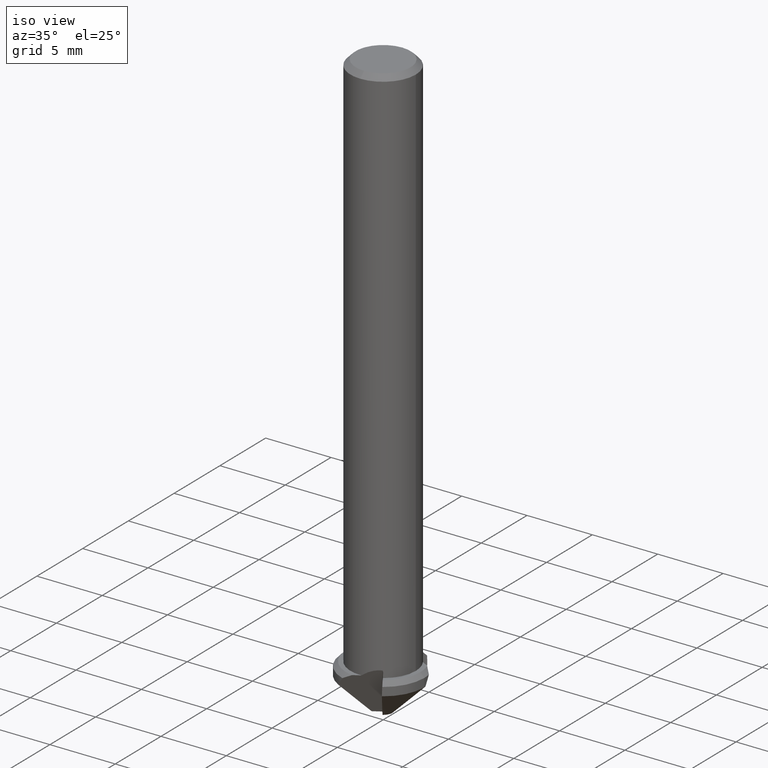
[diagram: clean part render]
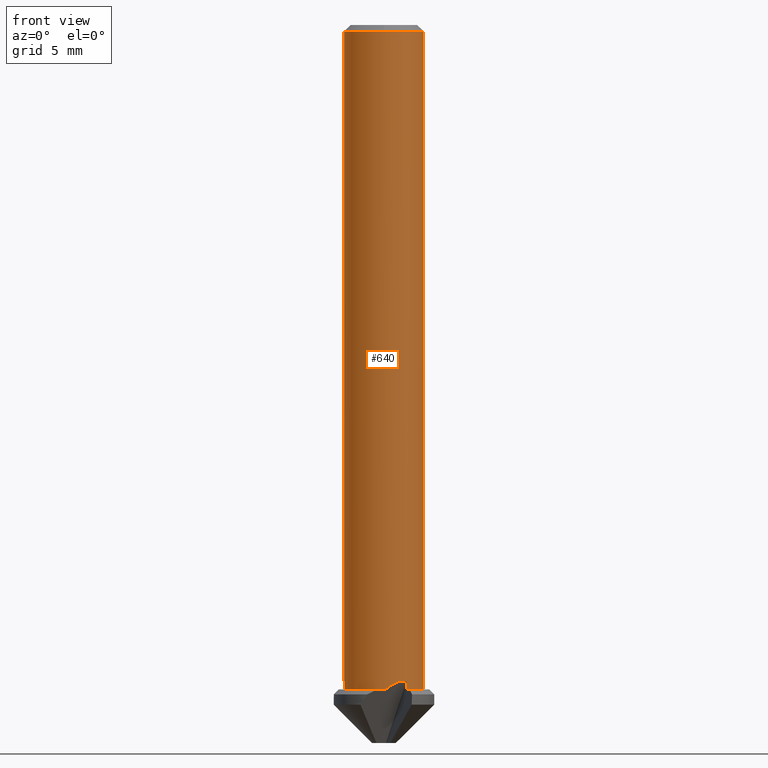
[diagram: tour spotlight — one face highlighted and labeled with its STEP entity id]
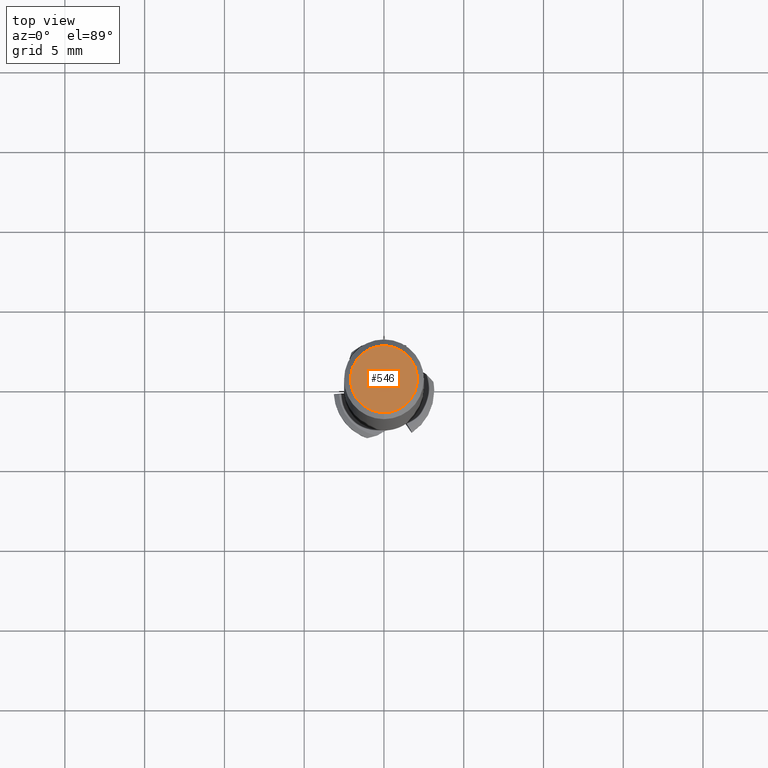
[diagram: tour spotlight — one face highlighted and labeled with its STEP entity id]
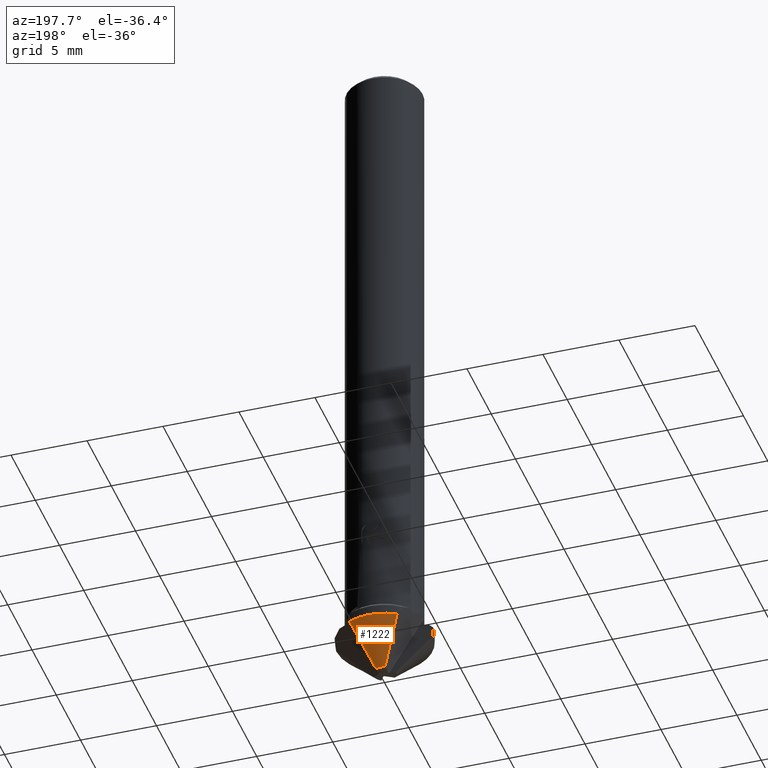
[diagram: tour spotlight — one face highlighted and labeled with its STEP entity id]
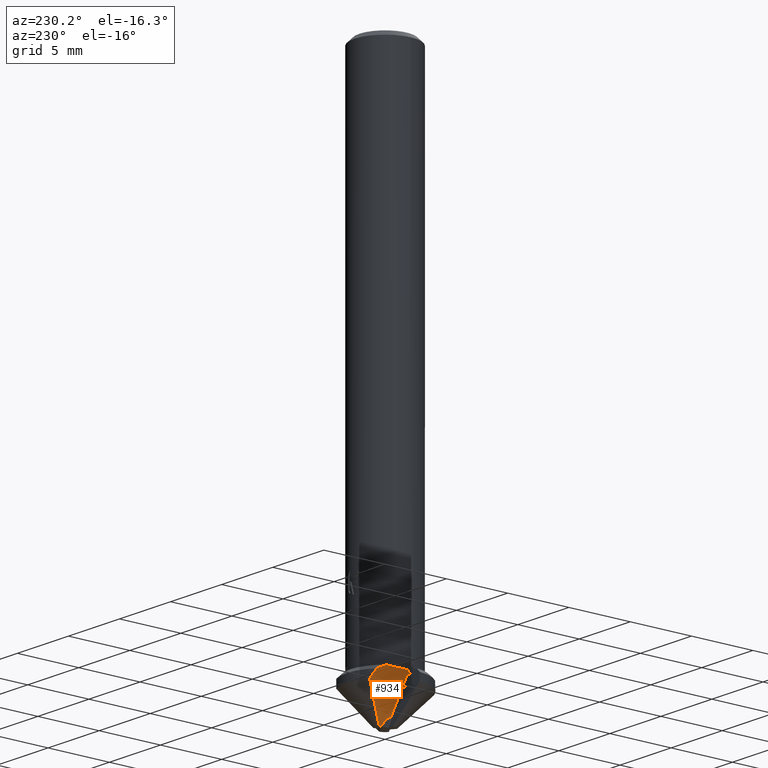
[diagram: tour spotlight — one face highlighted and labeled with its STEP entity id]
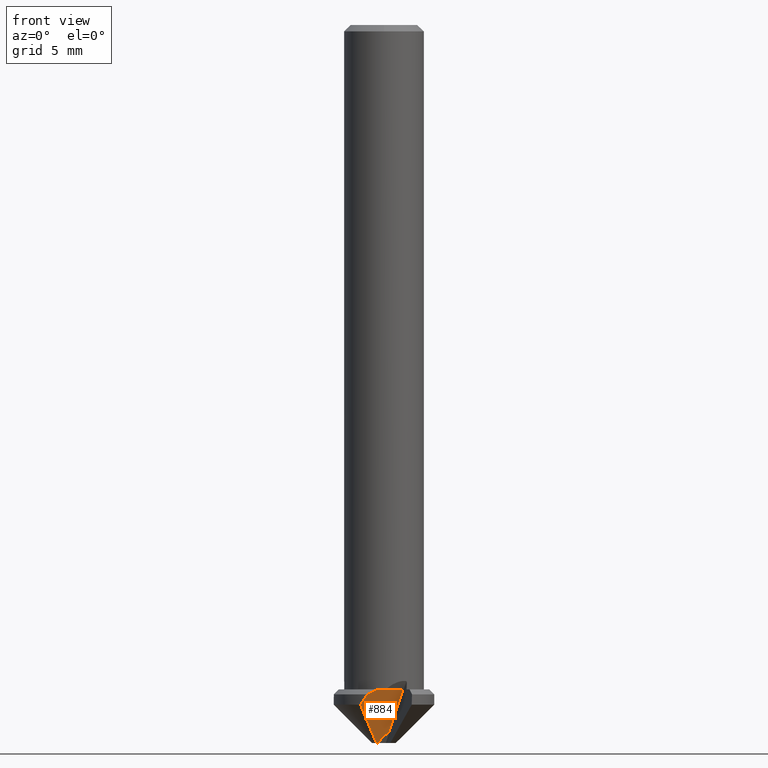
[diagram: tour spotlight — one face highlighted and labeled with its STEP entity id]
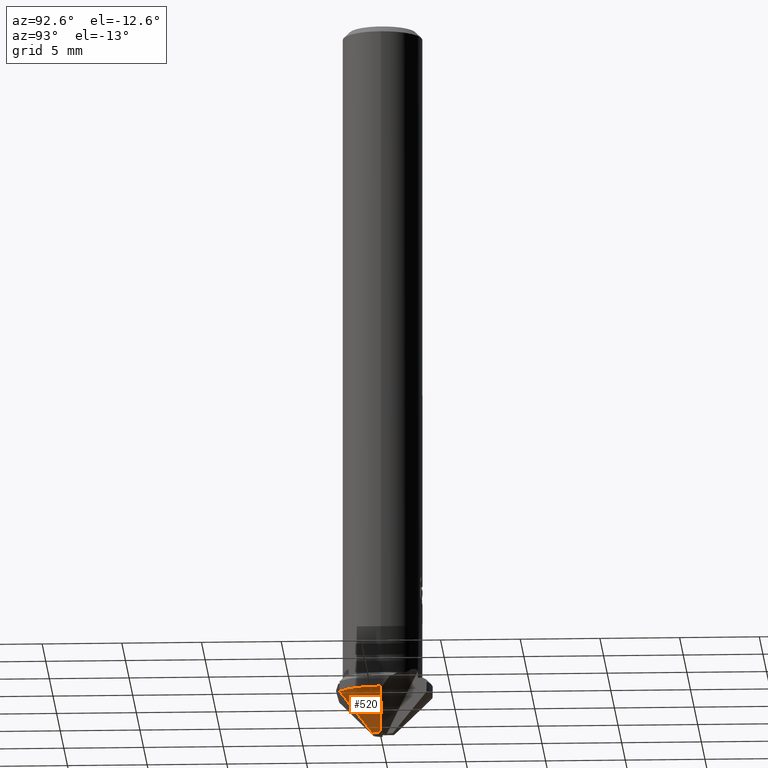
[diagram: tour spotlight — one face highlighted and labeled with its STEP entity id]
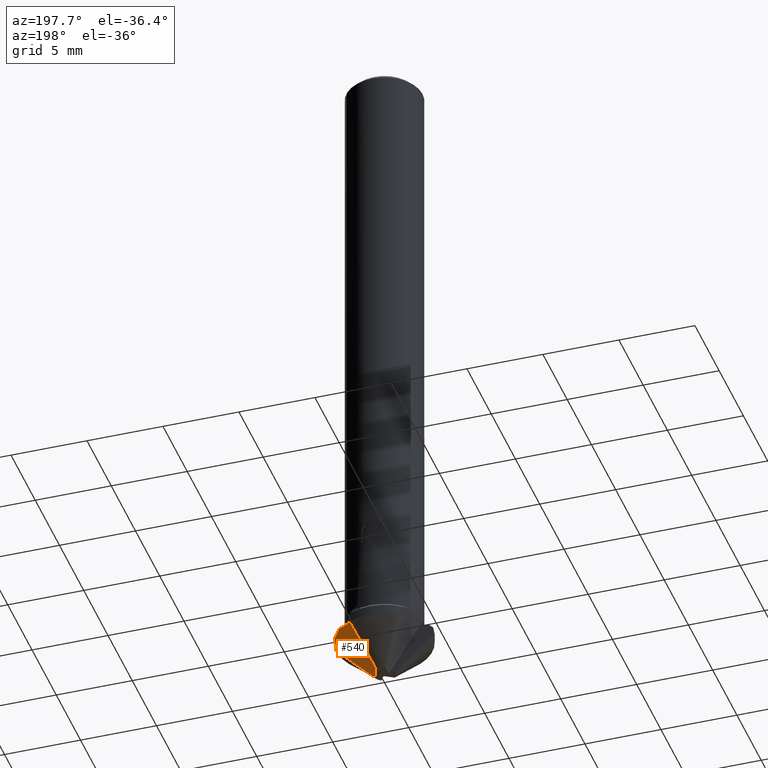
[diagram: tour spotlight — one face highlighted and labeled with its STEP entity id]
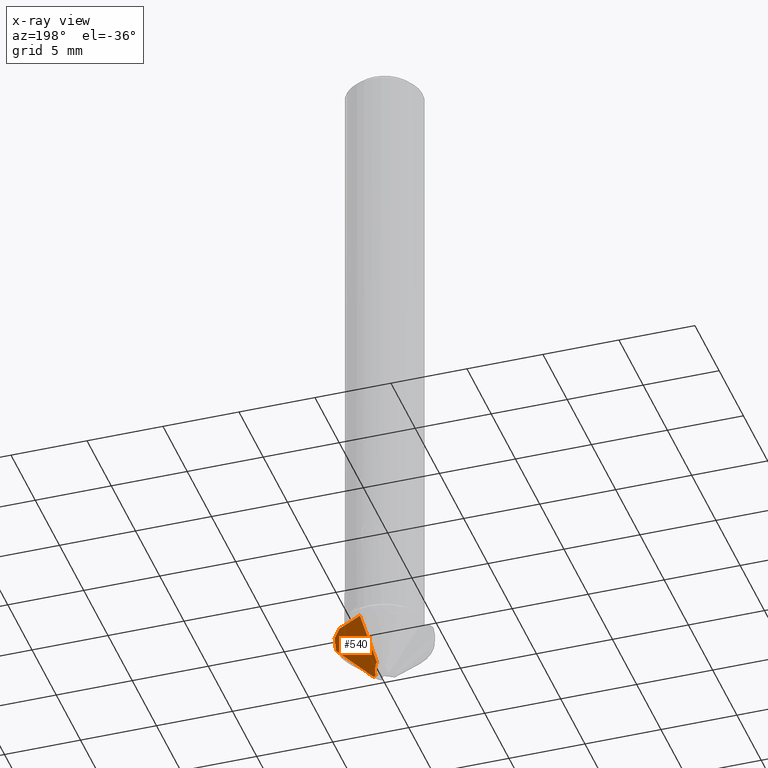
[diagram: x-ray of the same camera — body ghosted, this tour face saturated]
A machine part: a face-by-face anatomy tour. The part has 72 B-rep faces; the first image is the clean iso view, then the 7 largest visible faces are spotlighted one at a time (largest first), each with its STEP entity span.

Face 1 — front view, entity #640. In plain terms, the highlighted cylindrical surface (partial cylindrical patch) has radius 2.5 mm, axis along (-0, -0, 1).
Definition (entity closure, byte-faithful):
#492=VERTEX_POINT('',#1357);
#550=EDGE_CURVE('',#492,#664,#1422,.T.);
#560=VERTEX_POINT('',#1433);
#570=VERTEX_POINT('',#1443);
#614=EDGE_CURVE('',#840,#664,#1491,.T.);
#620=EDGE_CURVE('',#570,#850,#1497,.T.);
#638=VERTEX_POINT('',#1518);
#640=ADVANCED_FACE('',(#1520),#1521,.T.);
#664=VERTEX_POINT('',#1547);
#680=EDGE_CURVE('',#982,#812,#1564,.T.);
#718=EDGE_CURVE('',#872,#840,#1606,.T.);
#782=EDGE_CURVE('',#560,#570,#1676,.T.);
#804=EDGE_CURVE('',#812,#1054,#1701,.T.);
#812=VERTEX_POINT('',#1710);
#838=VERTEX_POINT('',#1738);
#840=VERTEX_POINT('',#1740);
#850=VERTEX_POINT('',#1751);
#852=EDGE_CURVE('',#850,#638,#1753,.T.);
#872=VERTEX_POINT('',#1773);
#954=EDGE_CURVE('',#492,#982,#1859,.T.);
#982=VERTEX_POINT('',#1891);
#1054=VERTEX_POINT('',#1967);
#1150=EDGE_CURVE('',#560,#1054,#2072,.T.);
#1178=EDGE_CURVE('',#638,#838,#2101,.T.);
#1258=EDGE_CURVE('',#838,#872,#2192,.T.);
#1357=CARTESIAN_POINT('',(0.095876214145413,-2.49816087383522,-41.64));
#1422=CIRCLE('',#2565,2.5);
#1433=CARTESIAN_POINT('',(2.5,3.06151588455594E-016,-41.64));
#1443=CARTESIAN_POINT('',(2.5,3.06151588455594E-016,-0.399999999999999));
#1491=ELLIPSE('',#2662,71.6342708696101,2.5);
#1497=CIRCLE('',#2670,2.5);
#1518=CARTESIAN_POINT('',(-2.5,-3.06151588455594E-016,-0.399999999999999));
#1520=FACE_OUTER_BOUND('',#2704,.T.);
#1521=CYLINDRICAL_SURFACE('',#2705,2.5);
#1547=CARTESIAN_POINT('',(-2.49160028507162,-0.20476332540531,-41.64));
#1564=B_SPLINE_CURVE_WITH_KNOTS('',3,(#2785,#2786,#2787,#2788,#2789,#2790,#2791,#2792,#2793,#2794,#2795,#2796,#2797,#2798),.UNSPECIFIED.,.F.,.F.,(4,2,2,2,2,2,4),(0.184157600930735,0.192742132728683,0.20659826256085,0.234310522225183,0.293125424812681,0.351940327400179,0.362202442003432),.UNSPECIFIED.);
#1606=B_SPLINE_CURVE_WITH_KNOTS('',3,(#2876,#2877,#2878,#2879,#2880,#2881,#2882,#2883,#2884,#2885,#2886,#2887,#2888,#2889,#2890,#2891,#2892,#2893,#2894,#2895,#2896,#2897,#2898,#2899,#2900,#2901,#2902,#2903),.UNSPECIFIED.,.F.,.F.,(4,2,2,2,2,2,2,2,2,2,2,2,2,4),(0.149848446933178,0.163136407059756,0.176424367186334,0.189425219866795,0.202426072547257,0.24404080675724,0.346817540624238,0.405897531316165,0.464977522008091,0.493727498229415,0.508102486340077,0.522477474450739,0.536204889528116,0.549932304605493),.UNSPECIFIED.);
#1676=LINE('',#3048,#3049);
#1701=ELLIPSE('',#3092,71.6342708696101,2.5);
#1710=CARTESIAN_POINT('',(1.43371677750411,-2.04803715833069,-41.271066367513));
#1738=CARTESIAN_POINT('',(-2.5,-1.18046230048316E-016,-41.1100794319298));
#1740=CARTESIAN_POINT('',(-2.49051059576092,-0.21761657198517,-41.271066367513));
#1751=CARTESIAN_POINT('',(3.06151588455594E-016,-2.5,-0.399999999999999));
#1753=CIRCLE('',#3198,2.5);
#1773=CARTESIAN_POINT('',(-2.49560361717412,-0.148197793328459,-41.1139234402125));
#1859=ELLIPSE('',#3435,5.00306602403646,2.5);
#1891=CARTESIAN_POINT('',(1.37614486239431,-2.08715723358489,-41.1139234402125));
#1967=CARTESIAN_POINT('',(1.42313038410019,-2.05540748024591,-41.64));
#2072=CIRCLE('',#3936,2.5);
#2101=LINE('',#3987,#3988);
#2192=ELLIPSE('',#4159,5.00306602403646,2.5);
#2565=AXIS2_PLACEMENT_3D('',#4336,#4337,#4338);
#2662=AXIS2_PLACEMENT_3D('',#4405,#4406,#4407);
#2670=AXIS2_PLACEMENT_3D('',#4411,#4412,#4413);
#2704=EDGE_LOOP('',(#4443,#4444,#4445,#4446,#4447,#4448,#4449,#4450,#4451,#4452,#4453,#4454));
#2705=AXIS2_PLACEMENT_3D('',#4455,#4456,#4457);
#2785=CARTESIAN_POINT('',(1.37614486239431,-2.08715723358489,-41.1139234402125));
#2786=CARTESIAN_POINT('',(1.37850030541525,-2.08560419734988,-41.1141415635389));
#2787=CARTESIAN_POINT('',(1.38082112861148,-2.0840682136214,-41.1146868102748));
#2788=CARTESIAN_POINT('',(1.38672655853296,-2.08014631371561,-41.1168822783324));
#2789=CARTESIAN_POINT('',(1.39021130795412,-2.07781801819718,-41.1190137653241));
#2790=CARTESIAN_POINT('',(1.39992110242683,-2.07129951783909,-41.1270811254951));
#2791=CARTESIAN_POINT('',(1.40540706748002,-2.06757283140281,-41.1347420055017));
#2792=CARTESIAN_POINT('',(1.41866604792631,-2.05852027735401,-41.1587030992715));
#2793=CARTESIAN_POINT('',(1.42456705640064,-2.05441733456814,-41.1784935888278));
#2794=CARTESIAN_POINT('',(1.43224530725354,-2.04907180503887,-41.2196343927208));
#2795=CARTESIAN_POINT('',(1.43386608256856,-2.04793263005879,-41.2410271209171));
#2796=CARTESIAN_POINT('',(1.43386608256856,-2.04793263005879,-41.264052793314));
#2797=CARTESIAN_POINT('',(1.43381790421655,-2.04796636515016,-41.2675362337877));
#2798=CARTESIAN_POINT('',(1.43371677750411,-2.04803715833069,-41.271066367513));
#2876=CARTESIAN_POINT('',(-2.49723001199174,-0.117653164886078,-41.1245813571492));
#2877=CARTESIAN_POINT('',(-2.49706714470833,-0.121110080545926,-41.1218169251271));
#2878=CARTESIAN_POINT('',(-2.49686761941061,-0.125184486597147,-41.1191767078453));
#2879=CARTESIAN_POINT('',(-2.49641511330507,-0.133905364928085,-41.1153495627207));
#2880=CARTESIAN_POINT('',(-2.4961611159631,-0.138561241303992,-41.1141842203717));
#2881=CARTESIAN_POINT('',(-2.49566104743293,-0.147290990010906,-41.1136093339465));
#2882=CARTESIAN_POINT('',(-2.49538131392577,-0.15195998930139,-41.1141309909483));
#2883=CARTESIAN_POINT('',(-2.49482542676131,-0.160828573790738,-41.1168578654616));
#2884=CARTESIAN_POINT('',(-2.49454937761884,-0.16503410632045,-41.1190437242373));
#2885=CARTESIAN_POINT('',(-2.49353358775265,-0.180060944883738,-41.1292707199678));
#2886=CARTESIAN_POINT('',(-2.49280506238175,-0.189637655602868,-41.1428663677687));
#2887=CARTESIAN_POINT('',(-2.4910958150393,-0.211382804086602,-41.1857705749852));
#2888=CARTESIAN_POINT('',(-2.49049472415427,-0.217798138099846,-41.2263731771573));
#2889=CARTESIAN_POINT('',(-2.49049472415427,-0.217798138099843,-41.2803254186769));
#2890=CARTESIAN_POINT('',(-2.49067267565873,-0.215804052657814,-41.3018178653678));
#2891=CARTESIAN_POINT('',(-2.49146383494243,-0.206470491969903,-41.3432497693991));
#2892=CARTESIAN_POINT('',(-2.49206936582275,-0.199252803465406,-41.3632167143965));
#2893=CARTESIAN_POINT('',(-2.49325390339751,-0.18360652047145,-41.3879333740522));
#2894=CARTESIAN_POINT('',(-2.49373551769797,-0.177041839615213,-41.3961217506384));
#2895=CARTESIAN_POINT('',(-2.49452644583357,-0.165387341514905,-41.4054193742128));
#2896=CARTESIAN_POINT('',(-2.49480114386018,-0.161204279479741,-41.4080299856761));
#2897=CARTESIAN_POINT('',(-2.49535541256372,-0.152383893868073,-41.4118357937317));
#2898=CARTESIAN_POINT('',(-2.49563490848592,-0.147747300346522,-41.4130326929691));
#2899=CARTESIAN_POINT('',(-2.49616947532086,-0.138415311120053,-41.4136472391728));
#2900=CARTESIAN_POINT('',(-2.49641732594316,-0.13386465043093,-41.4131246289423));
#2901=CARTESIAN_POINT('',(-2.49687227620477,-0.125092777343885,-41.4105787856303));
#2902=CARTESIAN_POINT('',(-2.49707940229521,-0.120871731663588,-41.4085549828736));
#2903=CARTESIAN_POINT('',(-2.49726365045584,-0.116936992059687,-41.4059759081725));
#3048=CARTESIAN_POINT('',(2.5,3.06151588455594E-016,-40.82));
#3049=VECTOR('',#4627,1.0);
#3092=AXIS2_PLACEMENT_3D('',#4662,#4663,#4664);
#3198=AXIS2_PLACEMENT_3D('',#4717,#4718,#4719);
#3435=AXIS2_PLACEMENT_3D('',#4806,#4807,#4808);
#3936=AXIS2_PLACEMENT_3D('',#5033,#5034,#5035);
#3987=CARTESIAN_POINT('',(-2.5,-3.06151588455594E-016,-40.82));
#3988=VECTOR('',#5048,1.0);
#4159=AXIS2_PLACEMENT_3D('',#5176,#5177,#5178);
#4336=CARTESIAN_POINT('',(0.0,0.0,-41.64));
#4337=DIRECTION('',(0.0,0.0,-1.0));
#4338=DIRECTION('',(-1.0,0.0,0.0));
#4405=CARTESIAN_POINT('',(0.0,0.0,-45.0099999999999));
#4406=DIRECTION('',(0.0348782368720624,-0.998782025129912,-0.0348994967025007));
#4407=DIRECTION('',(-0.00121797487008785,0.0348782368720624,-0.999390827019096));
#4411=CARTESIAN_POINT('',(0.0,0.0,-0.399999999999999));
#4412=DIRECTION('',(0.0,0.0,-1.0));
#4413=DIRECTION('',(0.0,1.0,0.0));
#4443=ORIENTED_EDGE('',*,*,#1178,.T.);
#4444=ORIENTED_EDGE('',*,*,#1258,.T.);
#4445=ORIENTED_EDGE('',*,*,#718,.T.);
#4446=ORIENTED_EDGE('',*,*,#614,.T.);
#4447=ORIENTED_EDGE('',*,*,#550,.F.);
#4448=ORIENTED_EDGE('',*,*,#954,.T.);
#4449=ORIENTED_EDGE('',*,*,#680,.T.);
#4450=ORIENTED_EDGE('',*,*,#804,.T.);
#4451=ORIENTED_EDGE('',*,*,#1150,.F.);
#4452=ORIENTED_EDGE('',*,*,#782,.T.);
#4453=ORIENTED_EDGE('',*,*,#620,.T.);
#4454=ORIENTED_EDGE('',*,*,#852,.T.);
#4455=CARTESIAN_POINT('',(0.0,0.0,-40.82));
#4456=DIRECTION('',(-0.0,-0.0,1.0));
#4457=DIRECTION('',(-1.0,0.0,0.0));
#4627=DIRECTION('',(-0.0,-0.0,1.0));
#4662=CARTESIAN_POINT('',(0.0,0.0,-45.01));
#4663=DIRECTION('',(0.84753148816974,0.529596451735374,-0.0348994967025007));
#4664=DIRECTION('',(-0.0295964517353732,-0.0184939156146983,-0.999390827019096));
#4717=CARTESIAN_POINT('',(0.0,0.0,-0.399999999999999));
#4718=DIRECTION('',(0.0,0.0,-1.0));
#4719=DIRECTION('',(0.0,1.0,0.0));
#4806=CARTESIAN_POINT('',(0.0,0.0,-45.4432782267687));
#4807=DIRECTION('',(-0.444080941659302,0.74370588129578,0.499693585491204));
#4808=DIRECTION('',(-0.256180817519519,0.429028050500298,-0.866202240021893));
#5033=CARTESIAN_POINT('',(0.0,0.0,-41.64));
#5034=DIRECTION('',(0.0,0.0,-1.0));
#5035=DIRECTION('',(-1.0,0.0,0.0));
#5048=DIRECTION('',(0.0,0.0,-1.0));
#5176=CARTESIAN_POINT('',(0.0,0.0,-45.4432782267687));
#5177=DIRECTION('',(0.866108656975691,0.0127324361655803,0.499693585491204));
#5178=DIRECTION('',(-0.499639599429131,-0.00734507068401934,0.866202240021893));

Face 2 — top view, entity #546. In plain terms, the highlighted planar face has unit normal (-0, 0, 1).
Definition (entity closure, byte-faithful):
#546=ADVANCED_FACE('',(#1417),#1418,.T.);
#590=VERTEX_POINT('',#1464);
#776=EDGE_CURVE('',#950,#590,#1670,.T.);
#950=VERTEX_POINT('',#1855);
#1068=EDGE_CURVE('',#590,#950,#1981,.T.);
#1417=FACE_OUTER_BOUND('',#2549,.T.);
#1418=PLANE('',#2550);
#1464=CARTESIAN_POINT('',(0.0,2.1,0.0));
#1670=CIRCLE('',#3039,2.1);
#1855=CARTESIAN_POINT('',(2.57167334302699E-016,-2.1,0.0));
#1981=CIRCLE('',#3744,2.1);
#2549=EDGE_LOOP('',(#4331,#4332));
#2550=AXIS2_PLACEMENT_3D('',#4333,#4334,#4335);
#3039=AXIS2_PLACEMENT_3D('',#4623,#4624,#4625);
#3744=AXIS2_PLACEMENT_3D('',#4917,#4918,#4919);
#4331=ORIENTED_EDGE('',*,*,#1068,.F.);
#4332=ORIENTED_EDGE('',*,*,#776,.F.);
#4333=CARTESIAN_POINT('',(0.0,1.05,0.0));
#4334=DIRECTION('',(-0.0,0.0,1.0));
#4335=DIRECTION('',(0.0,-1.0,0.0));
#4623=CARTESIAN_POINT('',(0.0,0.0,0.0));
#4624=DIRECTION('',(0.0,0.0,-1.0));
#4625=DIRECTION('',(0.0,1.0,0.0));
#4917=CARTESIAN_POINT('',(0.0,0.0,0.0));
#4918=DIRECTION('',(0.0,0.0,-1.0));
#4919=DIRECTION('',(0.0,1.0,0.0));

Face 3 — auxiliary view, entity #1222. In plain terms, the highlighted conical surface has half-angle 45 deg.
Definition (entity closure, byte-faithful):
#532=VERTEX_POINT('',#1401);
#586=EDGE_CURVE('',#1186,#1176,#1460,.T.);
#736=VERTEX_POINT('',#1627);
#742=EDGE_CURVE('',#736,#1176,#1634,.T.);
#1056=EDGE_CURVE('',#736,#532,#1969,.T.);
#1138=EDGE_CURVE('',#532,#1186,#2056,.T.);
#1176=VERTEX_POINT('',#2099);
#1186=VERTEX_POINT('',#2110);
#1222=ADVANCED_FACE('',(#2152),#2153,.T.);
#1401=CARTESIAN_POINT('',(-1.67957925683408,2.66486651073045,-42.6));
#1460=(B_SPLINE_CURVE(2,(#2610,#2611,#2612),.UNSPECIFIED.,.F.,.F.)B_SPLINE_CURVE_WITH_KNOTS((3,3),(0.0,3.39435243223515),.UNSPECIFIED.)RATIONAL_B_SPLINE_CURVE((1.0,1.26842145382471,1.0))BOUNDED_CURVE()REPRESENTATION_ITEM('')GEOMETRIC_REPRESENTATION_ITEM()CURVE());
#1627=CARTESIAN_POINT('',(-0.266053891210156,0.701224163140387,-45.0));
#1634=CIRCLE('',#2959,0.75);
#1969=(B_SPLINE_CURVE(2,(#3677,#3678,#3679),.UNSPECIFIED.,.F.,.F.)B_SPLINE_CURVE_WITH_KNOTS((3,3),(0.0,3.40794896105635),.UNSPECIFIED.)RATIONAL_B_SPLINE_CURVE((1.0,1.22495636607274,1.0))BOUNDED_CURVE()REPRESENTATION_ITEM('')GEOMETRIC_REPRESENTATION_ITEM()CURVE());
#2056=CIRCLE('',#3917,3.15);
#2099=CARTESIAN_POINT('',(0.351795301828989,0.662374565945169,-45.0));
#2110=CARTESIAN_POINT('',(1.40399949271188,2.81980237329937,-42.6));
#2152=FACE_OUTER_BOUND('',#4071,.T.);
#2153=CONICAL_SURFACE('',#4072,1.95,0.785398163397448);
#2610=CARTESIAN_POINT('',(1.40399949271188,2.81980237329937,-42.6));
#2611=CARTESIAN_POINT('',(0.554298643358404,1.07756853864004,-44.5383284645298));
#2612=CARTESIAN_POINT('',(0.351795301828988,0.662374565945166,-45.0));
#2959=AXIS2_PLACEMENT_3D('',#4585,#4586,#4587);
#3677=CARTESIAN_POINT('',(-0.266053891210157,0.701224163140382,-45.0));
#3678=CARTESIAN_POINT('',(-0.559870522739665,1.12294308933144,-44.501479254374));
#3679=CARTESIAN_POINT('',(-1.67957925683408,2.66486651073044,-42.6));
#3917=AXIS2_PLACEMENT_3D('',#4989,#4990,#4991);
#4071=EDGE_LOOP('',(#5124,#5125,#5126,#5127));
#4072=AXIS2_PLACEMENT_3D('',#5128,#5129,#5130);
#4585=CARTESIAN_POINT('',(0.0,0.0,-45.0));
#4586=DIRECTION('',(0.0,0.0,-1.0));
#4587=DIRECTION('',(-1.0,0.0,0.0));
#4989=CARTESIAN_POINT('',(0.0,0.0,-42.6));
#4990=DIRECTION('',(0.0,0.0,-1.0));
#4991=DIRECTION('',(-1.0,0.0,0.0));
#5124=ORIENTED_EDGE('',*,*,#1056,.T.);
#5125=ORIENTED_EDGE('',*,*,#1138,.T.);
#5126=ORIENTED_EDGE('',*,*,#586,.T.);
#5127=ORIENTED_EDGE('',*,*,#742,.F.);
#5128=CARTESIAN_POINT('',(0.0,0.0,-43.8));
#5129=DIRECTION('',(-0.0,-0.0,1.0));
#5130=DIRECTION('',(-1.0,0.0,0.0));

Face 4 — auxiliary view, entity #934. In plain terms, the highlighted planar face has unit normal (0.8661, 0.0127, 0.4997).
Definition (entity closure, byte-faithful):
#504=VERTEX_POINT('',#1369);
#514=EDGE_CURVE('',#766,#784,#1381,.T.);
#532=VERTEX_POINT('',#1401);
#580=EDGE_CURVE('',#532,#766,#1454,.T.);
#612=VERTEX_POINT('',#1489);
#624=EDGE_CURVE('',#784,#504,#1502,.T.);
#654=VERTEX_POINT('',#1537);
#702=EDGE_CURVE('',#654,#612,#1590,.T.);
#736=VERTEX_POINT('',#1627);
#766=VERTEX_POINT('',#1659);
#772=VERTEX_POINT('',#1666);
#784=VERTEX_POINT('',#1678);
#914=EDGE_CURVE('',#504,#772,#1818,.T.);
#918=EDGE_CURVE('',#980,#736,#1822,.T.);
#934=ADVANCED_FACE('',(#1838),#1839,.F.);
#980=VERTEX_POINT('',#1889);
#1036=EDGE_CURVE('',#612,#980,#1948,.T.);
#1056=EDGE_CURVE('',#736,#532,#1969,.T.);
#1212=EDGE_CURVE('',#654,#772,#2142,.T.);
#1369=CARTESIAN_POINT('',(-2.22018383548824,1.76295454752434,-41.64));
#1381=(B_SPLINE_CURVE(2,(#2447,#2448,#2449),.UNSPECIFIED.,.F.,.F.)B_SPLINE_CURVE_WITH_KNOTS((3,3),(0.0,0.700526404818907),.UNSPECIFIED.)RATIONAL_B_SPLINE_CURVE((1.0,1.00172944597958,1.0))BOUNDED_CURVE()REPRESENTATION_ITEM('')GEOMETRIC_REPRESENTATION_ITEM()CURVE());
#1401=CARTESIAN_POINT('',(-1.67957925683408,2.66486651073045,-42.6));
#1454=ELLIPSE('',#2600,6.30386319028594,3.15);
#1489=CARTESIAN_POINT('',(-0.269396162552321,0.536120982243826,-44.99));
#1502=(B_SPLINE_CURVE(2,(#2677,#2678,#2679),.UNSPECIFIED.,.F.,.F.)B_SPLINE_CURVE_WITH_KNOTS((3,3),(0.0,0.0254802947680137),.UNSPECIFIED.)RATIONAL_B_SPLINE_CURVE((1.0,1.00000255496425,1.0))BOUNDED_CURVE()REPRESENTATION_ITEM('')GEOMETRIC_REPRESENTATION_ITEM()CURVE());
#1537=CARTESIAN_POINT('',(-0.599088917852454,0.0330525113474856,-44.4057318701355));
#1590=ELLIPSE('',#2851,1.20073584576875,0.6);
#1627=CARTESIAN_POINT('',(-0.266053891210156,0.701224163140387,-45.0));
#1659=CARTESIAN_POINT('',(-2.04771846358285,2.39360587689408,-41.955));
#1666=CARTESIAN_POINT('',(-2.19251431236031,-0.119231485363025,-41.64));
#1678=CARTESIAN_POINT('',(-2.21474956156299,1.78575176873958,-41.65));
#1818=LINE('',#3305,#3306);
#1822=LINE('',#3311,#3312);
#1838=FACE_OUTER_BOUND('',#3368,.T.);
#1839=PLANE('',#3369);
#1889=CARTESIAN_POINT('',(-0.265975676265557,0.695903685602456,-45.0));
#1948=(B_SPLINE_CURVE(2,(#3576,#3577,#3578),.UNSPECIFIED.,.F.,.F.)B_SPLINE_CURVE_WITH_KNOTS((3,3),(0.0,2.05390842824059),.UNSPECIFIED.)RATIONAL_B_SPLINE_CURVE((1.0,3.7261147375487,1.0))BOUNDED_CURVE()REPRESENTATION_ITEM('')GEOMETRIC_REPRESENTATION_ITEM()CURVE());
#1969=(B_SPLINE_CURVE(2,(#3677,#3678,#3679),.UNSPECIFIED.,.F.,.F.)B_SPLINE_CURVE_WITH_KNOTS((3,3),(0.0,3.40794896105635),.UNSPECIFIED.)RATIONAL_B_SPLINE_CURVE((1.0,1.22495636607274,1.0))BOUNDED_CURVE()REPRESENTATION_ITEM('')GEOMETRIC_REPRESENTATION_ITEM()CURVE());
#2142=LINE('',#4054,#4055);
#2447=CARTESIAN_POINT('',(-2.04771846358285,2.39360587689408,-41.955));
#2448=CARTESIAN_POINT('',(-2.14368029429188,2.08217849839145,-41.7807360028992));
#2449=CARTESIAN_POINT('',(-2.21474956156299,1.78575176873956,-41.65));
#2600=AXIS2_PLACEMENT_3D('',#4369,#4370,#4371);
#2677=CARTESIAN_POINT('',(-2.21474956156299,1.78575176873958,-41.65));
#2678=CARTESIAN_POINT('',(-2.21748469242807,1.77434366044417,-41.6449685695317));
#2679=CARTESIAN_POINT('',(-2.22018383548824,1.76295454752434,-41.64));
#2851=AXIS2_PLACEMENT_3D('',#4534,#4535,#4536);
#3305=CARTESIAN_POINT('',(-2.28650779675704,6.27456224559539,-41.64));
#3306=VECTOR('',#4776,1.0);
#3311=CARTESIAN_POINT('',(-0.348300127505757,6.29592547033059,-45.0));
#3312=VECTOR('',#4777,1.0);
#3368=EDGE_LOOP('',(#4787,#4788,#4789,#4790,#4791,#4792,#4793,#4794,#4795));
#3369=AXIS2_PLACEMENT_3D('',#4796,#4797,#4798);
#3576=CARTESIAN_POINT('',(-0.228346524448145,-1.02854648158087,-45.0212820071702));
#3577=CARTESIAN_POINT('',(-0.282727546025808,-0.00415630348805002,-44.9531264574469));
#3578=CARTESIAN_POINT('',(-0.258482099120123,1.02138974169237,-45.0212820071702));
#3677=CARTESIAN_POINT('',(-0.266053891210157,0.701224163140382,-45.0));
#3678=CARTESIAN_POINT('',(-0.559870522739665,1.12294308933144,-44.501479254374));
#3679=CARTESIAN_POINT('',(-1.67957925683408,2.66486651073044,-42.6));
#4054=CARTESIAN_POINT('',(-0.19012995949681,0.0721368041443879,-45.1155679431642));
#4055=VECTOR('',#5114,1.0);
#4369=CARTESIAN_POINT('',(0.0,0.0,-45.4432782267687));
#4370=DIRECTION('',(0.866108656975691,0.0127324361655803,0.499693585491204));
#4371=DIRECTION('',(-0.49963959942913,-0.00734507068401933,0.866202240021893));
#4534=CARTESIAN_POINT('',(0.0,0.0,-45.4432782267687));
#4535=DIRECTION('',(-0.866108656975691,-0.0127324361655803,-0.499693585491204));
#4536=DIRECTION('',(-0.499639599429131,-0.00734507068401934,0.866202240021893));
#4776=DIRECTION('',(0.0146991494333453,-0.999891961666827,0.0));
#4777=DIRECTION('',(-0.0146991494333453,0.999891961666827,0.0));
#4787=ORIENTED_EDGE('',*,*,#702,.F.);
#4788=ORIENTED_EDGE('',*,*,#1212,.T.);
#4789=ORIENTED_EDGE('',*,*,#914,.F.);
#4790=ORIENTED_EDGE('',*,*,#624,.F.);
#4791=ORIENTED_EDGE('',*,*,#514,.F.);
#4792=ORIENTED_EDGE('',*,*,#580,.F.);
#4793=ORIENTED_EDGE('',*,*,#1056,.F.);
#4794=ORIENTED_EDGE('',*,*,#918,.F.);
#4795=ORIENTED_EDGE('',*,*,#1036,.F.);
#4796=CARTESIAN_POINT('',(-0.626412013178561,12.5818939581791,-44.6781239064325));
#4797=DIRECTION('',(0.866108656975691,0.0127324361655803,0.499693585491204));
#4798=DIRECTION('',(-0.034832887576599,0.99878269316782,0.0349256606453176));
#5114=DIRECTION('',(-0.498640616330882,-0.0476551875216675,0.865497844507676));

Face 5 — front view, entity #884. In plain terms, the highlighted planar face has unit normal (-0.4441, 0.7437, 0.4997).
Definition (entity closure, byte-faithful):
#502=VERTEX_POINT('',#1367);
#534=EDGE_CURVE('',#856,#502,#1403,.T.);
#542=EDGE_CURVE('',#1052,#976,#1413,.T.);
#588=VERTEX_POINT('',#1462);
#606=EDGE_CURVE('',#588,#970,#1482,.T.);
#752=EDGE_CURVE('',#1052,#856,#1644,.T.);
#774=EDGE_CURVE('',#502,#588,#1668,.T.);
#816=VERTEX_POINT('',#1714);
#856=VERTEX_POINT('',#1757);
#884=ADVANCED_FACE('',(#1785),#1786,.F.);
#898=VERTEX_POINT('',#1802);
#970=VERTEX_POINT('',#1878);
#976=VERTEX_POINT('',#1885);
#978=EDGE_CURVE('',#1296,#898,#1887,.T.);
#1052=VERTEX_POINT('',#1965);
#1060=EDGE_CURVE('',#898,#816,#1973,.T.);
#1080=EDGE_CURVE('',#816,#976,#1994,.T.);
#1228=EDGE_CURVE('',#970,#1296,#2159,.T.);
#1296=VERTEX_POINT('',#2235);
#1367=CARTESIAN_POINT('',(-0.469682432186168,-0.578293535235944,-45.0));
#1403=(B_SPLINE_CURVE(2,(#2525,#2526,#2527),.UNSPECIFIED.,.F.,.F.)B_SPLINE_CURVE_WITH_KNOTS((3,3),(0.0,2.05390842824059),.UNSPECIFIED.)RATIONAL_B_SPLINE_CURVE((1.0,3.72611473754871,1.0))BOUNDED_CURVE()REPRESENTATION_ITEM('')GEOMETRIC_REPRESENTATION_ITEM()CURVE());
#1413=LINE('',#2544,#2545);
#1462=CARTESIAN_POINT('',(-0.474250993421982,-0.581021510133888,-45.0));
#1482=(B_SPLINE_CURVE(2,(#2644,#2645,#2646),.UNSPECIFIED.,.F.,.F.)B_SPLINE_CURVE_WITH_KNOTS((3,3),(0.0,3.40794896105635),.UNSPECIFIED.)RATIONAL_B_SPLINE_CURVE((1.0,1.22495636607599,1.0))BOUNDED_CURVE()REPRESENTATION_ITEM('')GEOMETRIC_REPRESENTATION_ITEM()CURVE());
#1644=ELLIPSE('',#2999,1.20073584576875,0.6);
#1668=LINE('',#3035,#3036);
#1714=CARTESIAN_POINT('',(-0.416671506129257,-2.80421287636655,-41.64));
#1757=CARTESIAN_POINT('',(-0.329596308848859,-0.501364411574263,-44.99));
#1785=FACE_OUTER_BOUND('',#3240,.T.);
#1786=PLANE('',#3241);
#1802=CARTESIAN_POINT('',(-0.439131615799977,-2.81090526770379,-41.65));
#1878=CARTESIAN_POINT('',(-1.46805246756992,-2.78699155945293,-42.6));
#1885=CARTESIAN_POINT('',(1.19951465143549,-1.83915734998348,-41.64));
#1887=(B_SPLINE_CURVE(2,(#3473,#3474,#3475),.UNSPECIFIED.,.F.,.F.)B_SPLINE_CURVE_WITH_KNOTS((3,3),(0.0,0.700526404818891),.UNSPECIFIED.)RATIONAL_B_SPLINE_CURVE((1.0,1.00172944597937,1.0))BOUNDED_CURVE()REPRESENTATION_ITEM('')GEOMETRIC_REPRESENTATION_ITEM()CURVE());
#1965=CARTESIAN_POINT('',(0.270920144440435,-0.535352477659694,-44.4057318701355));
#1973=(B_SPLINE_CURVE(2,(#3691,#3692,#3693),.UNSPECIFIED.,.F.,.F.)B_SPLINE_CURVE_WITH_KNOTS((3,3),(0.0,0.0254802947680146),.UNSPECIFIED.)RATIONAL_B_SPLINE_CURVE((1.0,1.00000255465205,1.0))BOUNDED_CURVE()REPRESENTATION_ITEM('')GEOMETRIC_REPRESENTATION_ITEM()CURVE());
#1994=LINE('',#3776,#3777);
#2159=ELLIPSE('',#4081,6.30386319028594,3.15);
#2235=CARTESIAN_POINT('',(-1.04906426424658,-2.97017914770823,-41.955));
#2525=CARTESIAN_POINT('',(1.00492064424621,0.316519349752461,-45.0212820071702));
#2526=CARTESIAN_POINT('',(0.144963237419396,-0.242771085463955,-44.9531264574469));
#2527=CARTESIAN_POINT('',(-0.755308413910353,-0.734546935107735,-45.0212820071702));
#2544=CARTESIAN_POINT('',(0.032592674811545,-0.200725777016934,-45.1155679431642));
#2545=VECTOR('',#4329,1.0);
#2644=CARTESIAN_POINT('',(-0.474250993421978,-0.581021510133887,-45.0));
#2645=CARTESIAN_POINT('',(-0.692561980994755,-1.04633364018699,-44.5014792543755));
#2646=CARTESIAN_POINT('',(-1.46805246756992,-2.78699155945292,-42.6));
#2999=AXIS2_PLACEMENT_3D('',#4589,#4590,#4591);
#3035=CARTESIAN_POINT('',(-5.54907930890597,-3.61129812052299,-45.0));
#3036=VECTOR('',#4622,1.0);
#3240=EDGE_LOOP('',(#4741,#4742,#4743,#4744,#4745,#4746,#4747,#4748,#4749));
#3241=AXIS2_PLACEMENT_3D('',#4750,#4751,#4752);
#3473=CARTESIAN_POINT('',(-1.04906426424658,-2.97017914770823,-41.955));
#3474=CARTESIAN_POINT('',(-0.731379327674802,-2.8975708416446,-41.7807360028992));
#3475=CARTESIAN_POINT('',(-0.439131615799975,-2.81090526770379,-41.65));
#3691=CARTESIAN_POINT('',(-0.439131615799975,-2.81090526770379,-41.65));
#3692=CARTESIAN_POINT('',(-0.427884338774664,-2.80756990636796,-41.6449685695318));
#3693=CARTESIAN_POINT('',(-0.41667150612926,-2.80421287636655,-41.64));
#3776=CARTESIAN_POINT('',(-4.91287777128533,-5.48898324371404,-41.64));
#3777=VECTOR('',#4934,1.0);
#4081=AXIS2_PLACEMENT_3D('',#5132,#5133,#5134);
#4329=DIRECTION('',(0.290590911181316,-0.408007847340439,0.865497844507676));
#4589=CARTESIAN_POINT('',(0.0,0.0,-45.4432782267687));
#4590=DIRECTION('',(0.444080941659302,-0.74370588129578,-0.499693585491204));
#4591=DIRECTION('',(-0.256180817519519,0.429028050500298,-0.866202240021893));
#4622=DIRECTION('',(-0.858582265126656,-0.512675817656715,-0.0));
#4741=ORIENTED_EDGE('',*,*,#752,.F.);
#4742=ORIENTED_EDGE('',*,*,#542,.T.);
#4743=ORIENTED_EDGE('',*,*,#1080,.F.);
#4744=ORIENTED_EDGE('',*,*,#1060,.F.);
#4745=ORIENTED_EDGE('',*,*,#978,.F.);
#4746=ORIENTED_EDGE('',*,*,#1228,.F.);
#4747=ORIENTED_EDGE('',*,*,#606,.F.);
#4748=ORIENTED_EDGE('',*,*,#774,.F.);
#4749=ORIENTED_EDGE('',*,*,#534,.F.);
#4750=CARTESIAN_POINT('',(-10.5830337889158,-6.83343569573795,-44.6781239064325));
#4751=DIRECTION('',(-0.444080941659302,0.74370588129578,0.499693585491204));
#4752=DIRECTION('',(-0.847554741355271,-0.529557512112413,0.0349256606453175));
#4934=DIRECTION('',(0.858582265126656,0.512675817656715,-0.0));
#5132=CARTESIAN_POINT('',(0.0,0.0,-45.4432782267687));
#5133=DIRECTION('',(-0.444080941659302,0.74370588129578,0.499693585491204));
#5134=DIRECTION('',(-0.256180817519519,0.429028050500298,-0.866202240021893));

Face 6 — auxiliary view, entity #520. In plain terms, the highlighted conical surface has half-angle 45 deg.
Definition (entity closure, byte-faithful):
#472=EDGE_CURVE('',#536,#1114,#1337,.T.);
#490=EDGE_CURVE('',#992,#806,#1355,.T.);
#520=ADVANCED_FACE('',(#1388),#1389,.T.);
#536=VERTEX_POINT('',#1405);
#628=VERTEX_POINT('',#1506);
#788=EDGE_CURVE('',#806,#536,#1683,.T.);
#806=VERTEX_POINT('',#1703);
#824=EDGE_CURVE('',#628,#1114,#1723,.T.);
#992=VERTEX_POINT('',#1901);
#1114=VERTEX_POINT('',#2030);
#1160=EDGE_CURVE('',#628,#992,#2082,.T.);
#1337=(B_SPLINE_CURVE(2,(#2308,#2309,#2310),.UNSPECIFIED.,.F.,.F.)B_SPLINE_CURVE_WITH_KNOTS((3,3),(0.0,3.39435243223514),.UNSPECIFIED.)RATIONAL_B_SPLINE_CURVE((1.0,1.26842145734371,1.0))BOUNDED_CURVE()REPRESENTATION_ITEM('')GEOMETRIC_REPRESENTATION_ITEM()CURVE());
#1355=LINE('',#2369,#2370);
#1388=FACE_OUTER_BOUND('',#2463,.T.);
#1389=CONICAL_SURFACE('',#2464,1.95,0.785398163397448);
#1405=CARTESIAN_POINT('',(1.74002074257297,-2.62580041423864,-42.6));
#1506=CARTESIAN_POINT('',(0.740304884632136,-0.120202653006494,-45.0));
#1683=CIRCLE('',#3057,3.15);
#1703=CARTESIAN_POINT('',(3.15,5.30422687720208E-016,-42.6));
#1723=CIRCLE('',#3118,0.75);
#1901=CARTESIAN_POINT('',(1.97341383376225,2.49449048342188E-016,-43.7765861662378));
#2030=CARTESIAN_POINT('',(0.397735550014713,-0.635850951288503,-45.0));
#2082=(B_SPLINE_CURVE(2,(#3950,#3951,#3952),.UNSPECIFIED.,.F.,.F.)B_SPLINE_CURVE_WITH_KNOTS((3,3),(0.0,3.40794896105635),.UNSPECIFIED.)RATIONAL_B_SPLINE_CURVE((1.0,1.22495636607528,1.0))BOUNDED_CURVE()REPRESENTATION_ITEM('')GEOMETRIC_REPRESENTATION_ITEM()CURVE());
#2308=CARTESIAN_POINT('',(1.74002074257297,-2.62580041423863,-42.6));
#2309=CARTESIAN_POINT('',(0.656052406283095,-1.01882097453768,-44.5383284659936));
#2310=CARTESIAN_POINT('',(0.397735550014711,-0.6358509512885,-45.0));
#2369=CARTESIAN_POINT('',(1.95,2.43613869108918E-016,-43.8));
#2370=VECTOR('',#4249,1.0);
#2463=EDGE_LOOP('',(#4294,#4295,#4296,#4297,#4298));
#2464=AXIS2_PLACEMENT_3D('',#4299,#4300,#4301);
#3057=AXIS2_PLACEMENT_3D('',#4636,#4637,#4638);
#3118=AXIS2_PLACEMENT_3D('',#4692,#4693,#4694);
#3950=CARTESIAN_POINT('',(0.740304884632134,-0.120202653006492,-45.0));
#3951=CARTESIAN_POINT('',(1.25243250373388,-0.0766094491432022,-44.5014792543751));
#3952=CARTESIAN_POINT('',(3.147631724404,0.122125048722486,-42.6));
#4249=DIRECTION('',(0.707106781186547,8.65927457071935E-017,0.707106781186548));
#4294=ORIENTED_EDGE('',*,*,#490,.T.);
#4295=ORIENTED_EDGE('',*,*,#788,.T.);
#4296=ORIENTED_EDGE('',*,*,#472,.T.);
#4297=ORIENTED_EDGE('',*,*,#824,.F.);
#4298=ORIENTED_EDGE('',*,*,#1160,.T.);
#4299=CARTESIAN_POINT('',(0.0,0.0,-43.8));
#4300=DIRECTION('',(-0.0,-0.0,1.0));
#4301=DIRECTION('',(-1.0,0.0,0.0));
#4636=CARTESIAN_POINT('',(0.0,0.0,-42.6));
#4637=DIRECTION('',(0.0,0.0,-1.0));
#4638=DIRECTION('',(-1.0,0.0,0.0));
#4692=CARTESIAN_POINT('',(0.0,0.0,-45.0));
#4693=DIRECTION('',(0.0,0.0,-1.0));
#4694=DIRECTION('',(-1.0,0.0,0.0));

Face 7 — auxiliary view, entity #540. An x-ray twin of the same camera follows (body ghosted, this face saturated) — the face is partly hidden behind the body. In plain terms, the highlighted planar face has unit normal (-0.422, -0.7564, 0.4997).
Definition (entity closure, byte-faithful):
#486=VERTEX_POINT('',#1351);
#498=EDGE_CURVE('',#582,#628,#1363,.T.);
#500=VERTEX_POINT('',#1365);
#522=EDGE_CURVE('',#992,#486,#1391,.T.);
#540=ADVANCED_FACE('',(#1410),#1411,.F.);
#574=VERTEX_POINT('',#1448);
#582=VERTEX_POINT('',#1456);
#592=VERTEX_POINT('',#1466);
#628=VERTEX_POINT('',#1506);
#658=VERTEX_POINT('',#1541);
#666=VERTEX_POINT('',#1549);
#744=VERTEX_POINT('',#1636);
#810=EDGE_CURVE('',#486,#666,#1708,.T.);
#826=EDGE_CURVE('',#500,#744,#1725,.T.);
#836=EDGE_CURVE('',#592,#582,#1736,.T.);
#880=VERTEX_POINT('',#1781);
#896=EDGE_CURVE('',#658,#574,#1800,.T.);
#912=EDGE_CURVE('',#574,#880,#1816,.T.);
#992=VERTEX_POINT('',#1901);
#1062=EDGE_CURVE('',#500,#880,#1975,.T.);
#1128=EDGE_CURVE('',#666,#658,#2046,.T.);
#1160=EDGE_CURVE('',#628,#992,#2082,.T.);
#1232=EDGE_CURVE('',#744,#592,#2163,.T.);
#1351=CARTESIAN_POINT('',(3.147631724404,0.122125048722482,-42.6));
#1363=LINE('',#2383,#2384);
#1365=CARTESIAN_POINT('',(0.328168773412019,0.502299966312213,-44.4057318701355));
#1391=(B_SPLINE_CURVE(2,(#2468,#2469,#2470),.UNSPECIFIED.,.F.,.F.)B_SPLINE_CURVE_WITH_KNOTS((3,3),(0.0,3.40794896105635),.UNSPECIFIED.)RATIONAL_B_SPLINE_CURVE((1.0,1.22495636607528,1.0))BOUNDED_CURVE()REPRESENTATION_ITEM('')GEOMETRIC_REPRESENTATION_ITEM()CURVE());
#1410=FACE_OUTER_BOUND('',#2540,.T.);
#1411=PLANE('',#2541);
#1448=CARTESIAN_POINT('',(2.63685534161749,1.04125832884222,-41.64));
#1456=CARTESIAN_POINT('',(0.735658108451724,-0.117610150366506,-45.0));
#1466=CARTESIAN_POINT('',(0.598992471401179,-0.0347565706695577,-44.99));
#1506=CARTESIAN_POINT('',(0.740304884632136,-0.120202653006494,-45.0));
#1541=CARTESIAN_POINT('',(2.65388117736296,1.02515349896421,-41.65));
#1549=CARTESIAN_POINT('',(3.09678272782943,0.576573270814149,-41.955));
#1636=CARTESIAN_POINT('',(0.600000000000001,-1.18163083543469E-015,-44.9365344210804));
#1708=ELLIPSE('',#3100,6.30386319028594,3.15);
#1725=ELLIPSE('',#3121,1.20073584576875,0.6);
#1736=(B_SPLINE_CURVE(2,(#3145,#3146,#3147),.UNSPECIFIED.,.F.,.F.)B_SPLINE_CURVE_WITH_KNOTS((3,3),(0.0,2.05390842824059),.UNSPECIFIED.)RATIONAL_B_SPLINE_CURVE((1.0,3.7261147375487,1.0))BOUNDED_CURVE()REPRESENTATION_ITEM('')GEOMETRIC_REPRESENTATION_ITEM()CURVE());
#1781=CARTESIAN_POINT('',(0.992999660924822,1.95838883534652,-41.64));
#1800=(B_SPLINE_CURVE(2,(#3261,#3262,#3263),.UNSPECIFIED.,.F.,.F.)B_SPLINE_CURVE_WITH_KNOTS((3,3),(0.0,0.0254802947680128),.UNSPECIFIED.)RATIONAL_B_SPLINE_CURVE((1.0,1.00000255497196,1.0))BOUNDED_CURVE()REPRESENTATION_ITEM('')GEOMETRIC_REPRESENTATION_ITEM()CURVE());
#1816=LINE('',#3301,#3302);
#1901=CARTESIAN_POINT('',(1.97341383376225,2.49449048342188E-016,-43.7765861662378));
#1975=LINE('',#3702,#3703);
#2046=(B_SPLINE_CURVE(2,(#3885,#3886,#3887),.UNSPECIFIED.,.F.,.F.)B_SPLINE_CURVE_WITH_KNOTS((3,3),(0.0,0.700526404818893),.UNSPECIFIED.)RATIONAL_B_SPLINE_CURVE((1.0,1.00172944597841,1.0))BOUNDED_CURVE()REPRESENTATION_ITEM('')GEOMETRIC_REPRESENTATION_ITEM()CURVE());
#2082=(B_SPLINE_CURVE(2,(#3950,#3951,#3952),.UNSPECIFIED.,.F.,.F.)B_SPLINE_CURVE_WITH_KNOTS((3,3),(0.0,3.40794896105635),.UNSPECIFIED.)RATIONAL_B_SPLINE_CURVE((1.0,1.22495636607528,1.0))BOUNDED_CURVE()REPRESENTATION_ITEM('')GEOMETRIC_REPRESENTATION_ITEM()CURVE());
#2163=ELLIPSE('',#4100,1.20073584576875,0.6);
#2383=CARTESIAN_POINT('',(5.33675443641173,-2.68462734980759,-45.0));
#2384=VECTOR('',#4252,1.0);
#2468=CARTESIAN_POINT('',(0.740304884632134,-0.120202653006492,-45.0));
#2469=CARTESIAN_POINT('',(1.25243250373388,-0.0766094491432022,-44.5014792543751));
#2470=CARTESIAN_POINT('',(3.147631724404,0.122125048722486,-42.6));
#2540=EDGE_LOOP('',(#4315,#4316,#4317,#4318,#4319,#4320,#4321,#4322,#4323,#4324,#4325));
#2541=AXIS2_PLACEMENT_3D('',#4326,#4327,#4328);
#3100=AXIS2_PLACEMENT_3D('',#4680,#4681,#4682);
#3121=AXIS2_PLACEMENT_3D('',#4695,#4696,#4697);
#3145=CARTESIAN_POINT('',(-0.776574119798064,0.712027131828416,-45.0212820071702));
#3146=CARTESIAN_POINT('',(0.137764308606407,0.246927388952016,-44.9531264574469));
#3147=CARTESIAN_POINT('',(1.01379051303048,-0.286842806584626,-45.0212820071702));
#3261=CARTESIAN_POINT('',(2.65388117736296,1.02515349896421,-41.65));
#3262=CARTESIAN_POINT('',(2.64536903120243,1.03322624592386,-41.6449685695316));
#3263=CARTESIAN_POINT('',(2.6368553416175,1.04125832884222,-41.64));
#3301=CARTESIAN_POINT('',(5.91126056804237,-0.785579001881339,-41.64));
#3302=VECTOR('',#4775,1.0);
#3702=CARTESIAN_POINT('',(0.157537284685265,0.128588972872554,-45.1155679431642));
#3703=VECTOR('',#4916,1.0);
#3885=CARTESIAN_POINT('',(3.09678272782943,0.576573270814146,-41.955));
#3886=CARTESIAN_POINT('',(2.87505962196668,0.815392343253136,-41.7807360028992));
#3887=CARTESIAN_POINT('',(2.65388117736296,1.02515349896421,-41.65));
#3950=CARTESIAN_POINT('',(0.740304884632134,-0.120202653006492,-45.0));
#3951=CARTESIAN_POINT('',(1.25243250373388,-0.0766094491432022,-44.5014792543751));
#3952=CARTESIAN_POINT('',(3.147631724404,0.122125048722486,-42.6));
#4100=AXIS2_PLACEMENT_3D('',#5135,#5136,#5137);
#4252=DIRECTION('',(0.873281414560001,-0.487216144010113,0.0));
#4315=ORIENTED_EDGE('',*,*,#826,.F.);
#4316=ORIENTED_EDGE('',*,*,#1062,.T.);
#4317=ORIENTED_EDGE('',*,*,#912,.F.);
#4318=ORIENTED_EDGE('',*,*,#896,.F.);
#4319=ORIENTED_EDGE('',*,*,#1128,.F.);
#4320=ORIENTED_EDGE('',*,*,#810,.F.);
#4321=ORIENTED_EDGE('',*,*,#522,.F.);
#4322=ORIENTED_EDGE('',*,*,#1160,.F.);
#4323=ORIENTED_EDGE('',*,*,#498,.F.);
#4324=ORIENTED_EDGE('',*,*,#836,.F.);
#4325=ORIENTED_EDGE('',*,*,#1232,.F.);
#4326=CARTESIAN_POINT('',(11.2094458020943,-5.74845826244117,-44.6781239064325));
#4327=DIRECTION('',(-0.422027715316389,-0.75643831746136,0.499693585491204));
#4328=DIRECTION('',(0.88238762893187,-0.469225181055408,0.0349256606453176));
#4680=CARTESIAN_POINT('',(0.0,0.0,-45.4432782267687));
#4681=DIRECTION('',(-0.422027715316389,-0.75643831746136,0.499693585491204));
#4682=DIRECTION('',(-0.243458781909612,-0.436373121184318,-0.866202240021893));
#4695=CARTESIAN_POINT('',(0.0,0.0,-45.4432782267687));
#4696=DIRECTION('',(0.422027715316389,0.756438317461361,-0.499693585491204));
#4697=DIRECTION('',(-0.243458781909612,-0.436373121184318,-0.866202240021893));
#4775=DIRECTION('',(-0.873281414560001,0.487216144010113,0.0));
#4916=DIRECTION('',(0.208049705149566,0.455663034862107,0.865497844507676));
#5135=CARTESIAN_POINT('',(0.0,0.0,-45.4432782267687));
#5136=DIRECTION('',(0.422027715316389,0.756438317461361,-0.499693585491204));
#5137=DIRECTION('',(-0.243458781909612,-0.436373121184318,-0.866202240021893));